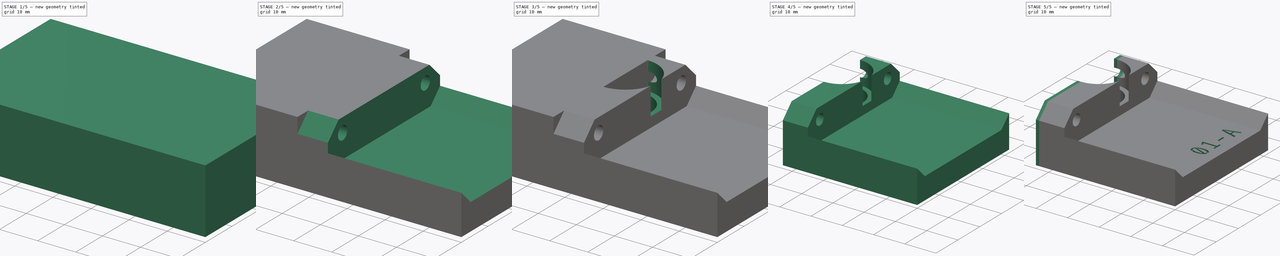
[diagram: build sequence overview — one tinted view per stage of 5, left to right]
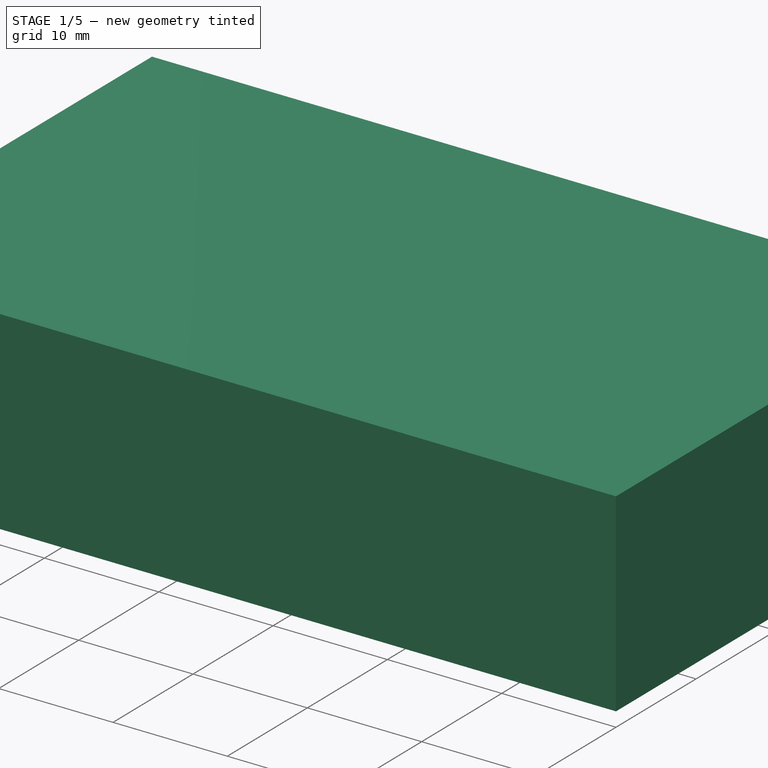
[diagram: stage 1 of 5 — iso view after this stage's code; geometry added in this stage tinted green]
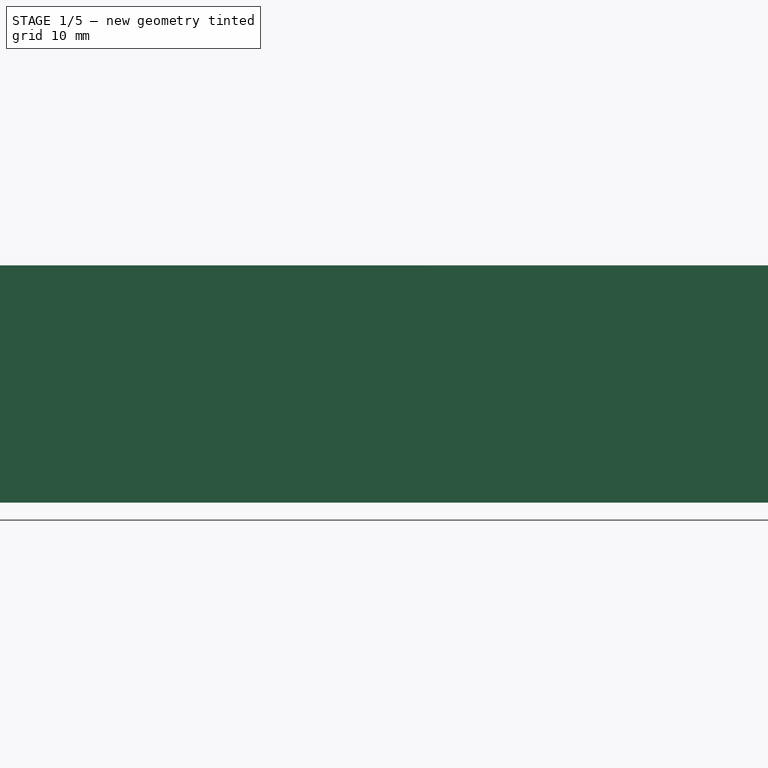
[diagram: stage 1 of 5 — front view after this stage's code; geometry added in this stage tinted green]
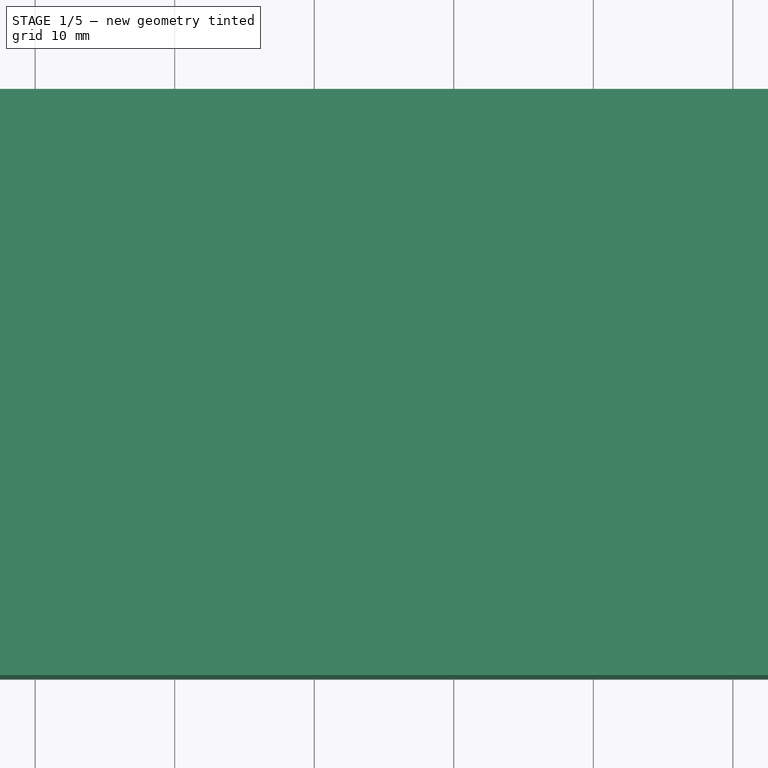
[diagram: stage 1 of 5 — top view after this stage's code; geometry added in this stage tinted green]
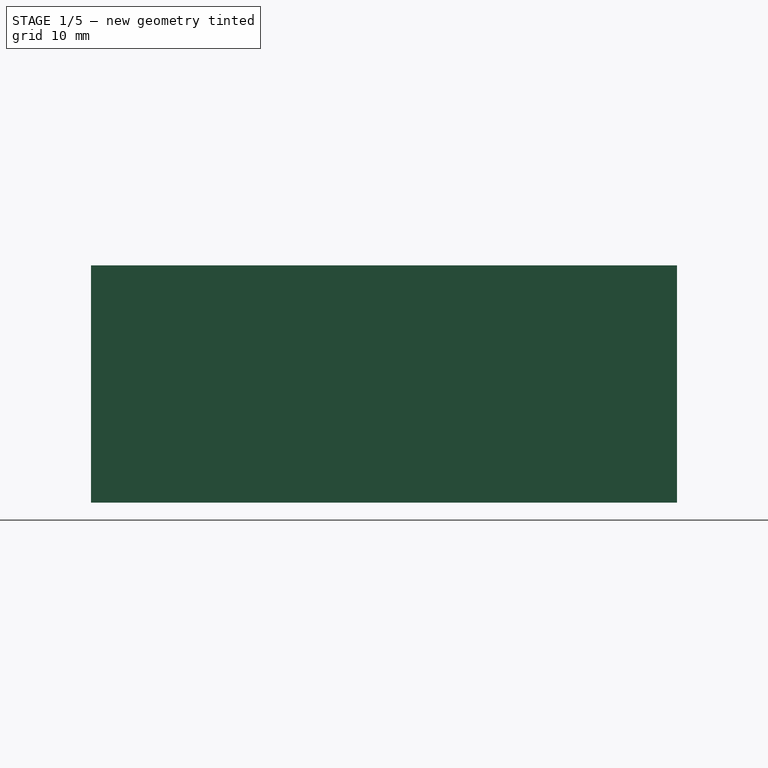
[diagram: stage 1 of 5 — right view after this stage's code; geometry added in this stage tinted green]
FCSTD DOCUMENT  (FreeCAD 0.17R13541 (Git))
Label: E3Dv6forGEEETech_B
License: Other
LicenseURL: https://www.gnu.org/licenses/gpl-2.0.html
objects: Part::Feature×11, Sketcher::SketchObject×8, PartDesign::Pocket×8, Part::Box×2, PartDesign::FeatureBase×2, PartDesign::Body×2, Part::Cut×2, PartDesign::Pad×2, Part::Fillet×1, Part::MultiFuse×1, Part::Extrusion×1
note: 50 computed .brp shape members not serialized (recipe doc carries the construction recipe); baked Part::Feature solids carry a one-line shape summary decoded from their .brp

FEATURE [Part::Box] Box  label="Cube"
  AttacherType = Attacher::AttachEngine3D
  Height = 17
  Length = 70
  Width = 42
FEATURE [PartDesign::FeatureBase] BaseFeature
  BaseFeature = -> Box
FEATURE [Part::Feature] path4484
  shape: bbox 3.4 x 5.012 x 2e-07 mm, 0 faces, 0 solids (baked)
FEATURE [Part::Feature] path4484001
  shape: bbox 2.472 x 2.845 x 2e-07 mm, 0 faces, 0 solids (baked)
FEATURE [Part::Feature] path4486
  shape: bbox 3.434 x 5.039 x 2e-07 mm, 0 faces, 0 solids (baked)
FEATURE [Part::Feature] path4488
  shape: bbox 5.249 x 3.59 x 2e-07 mm, 0 faces, 0 solids (baked)
FEATURE [Part::Feature] path4490
  shape: bbox 3.15 x 3.658 x 2e-07 mm, 0 faces, 0 solids (baked)
FEATURE [Part::Feature] path4490001
  shape: bbox 2.079 x 1.517 x 2e-07 mm, 0 faces, 0 solids (baked)
FEATURE [Part::Feature] path4492
  shape: bbox 3.407 x 5.1 x 2e-07 mm, 0 faces, 0 solids (baked)
FEATURE [Part::Feature] path4492001
  shape: bbox 2.479 x 2.845 x 2e-07 mm, 0 faces, 0 solids (baked)
FEATURE [Part::Feature] path4494
  shape: bbox 0.4606 x 3.529 x 2e-07 mm, 0 faces, 0 solids (baked)
FEATURE [Part::Feature] path4494001
  shape: bbox 0.4606 x 0.6773 x 2e-07 mm, 0 faces, 0 solids (baked)
FEATURE [Part::Feature] path4496
  shape: bbox 3.238 x 3.658 x 2e-07 mm, 0 faces, 0 solids (baked)
FEATURE [Part::MultiFuse] Fusion  label="MagicLabel"
  Placement = pos=(-1,53,12) rot=(0.57735,-0.57735,-0.57735;2.0944rad)
  Shapes = -> [path4484,path4484001,path4496,path4494001,path4494,path4492001,path4492,path4490001,path4490,path4488,path4486]
FEATURE [Part::Extrusion] Extrude
  Base = -> Fusion
  Dir = (1,0,0)
  DirMode = 2
  FaceMakerClass = Part::FaceMakerBullseye
  LengthFwd = 1
  LengthRev = 0
  Placement = pos=(1,-1,0) rot=(0,0,1;0rad)
  Solid = true
  Symmetric = false
FEATURE [Part::Box] Box001  label="HalfingCube"
  AttacherType = Attacher::AttachEngine3D
  Height = 17
  Length = 27
  Width = 42
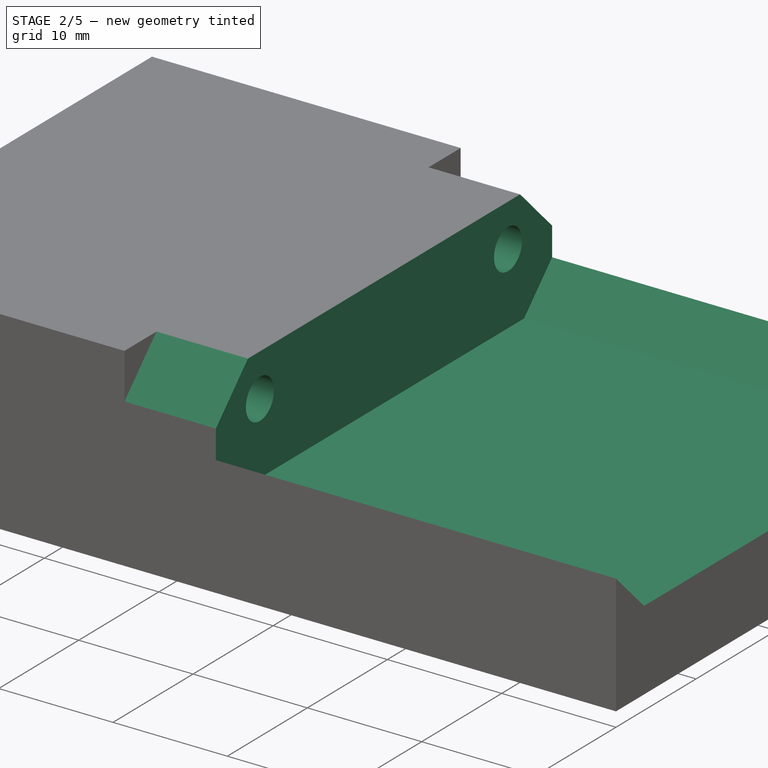
[diagram: stage 2 of 5 — iso view after this stage's code; geometry added in this stage tinted green]
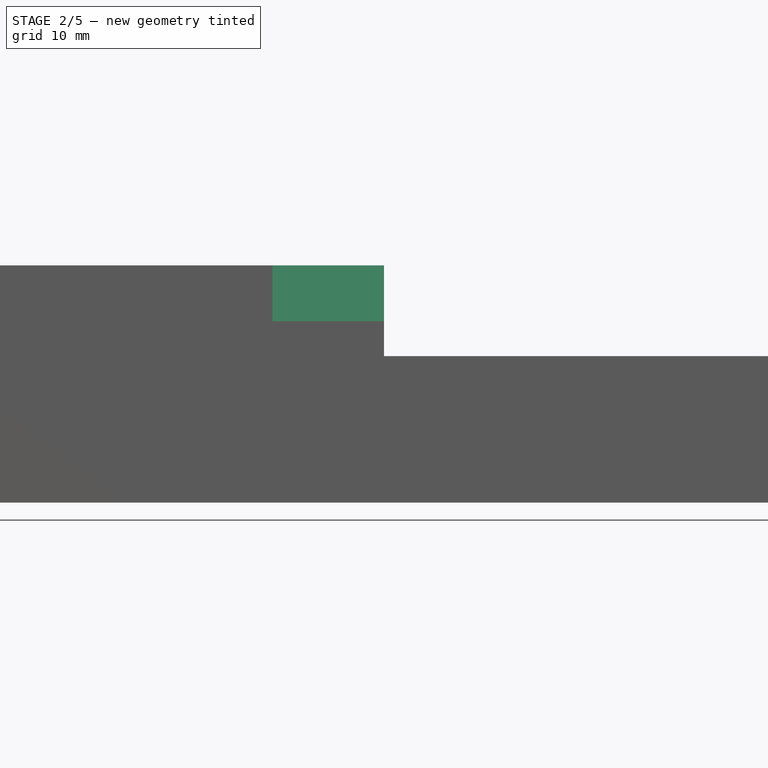
[diagram: stage 2 of 5 — front view after this stage's code; geometry added in this stage tinted green]
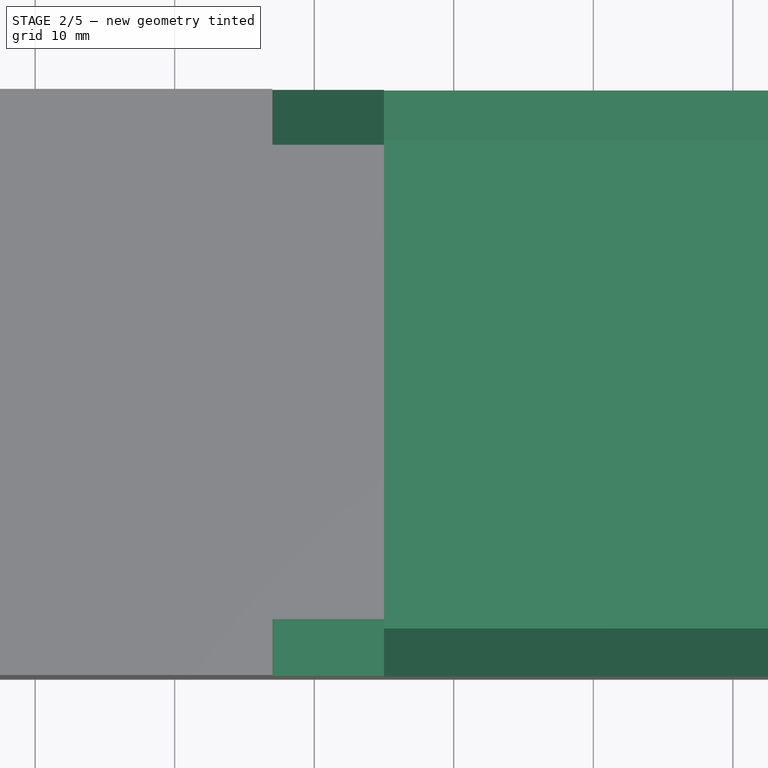
[diagram: stage 2 of 5 — top view after this stage's code; geometry added in this stage tinted green]
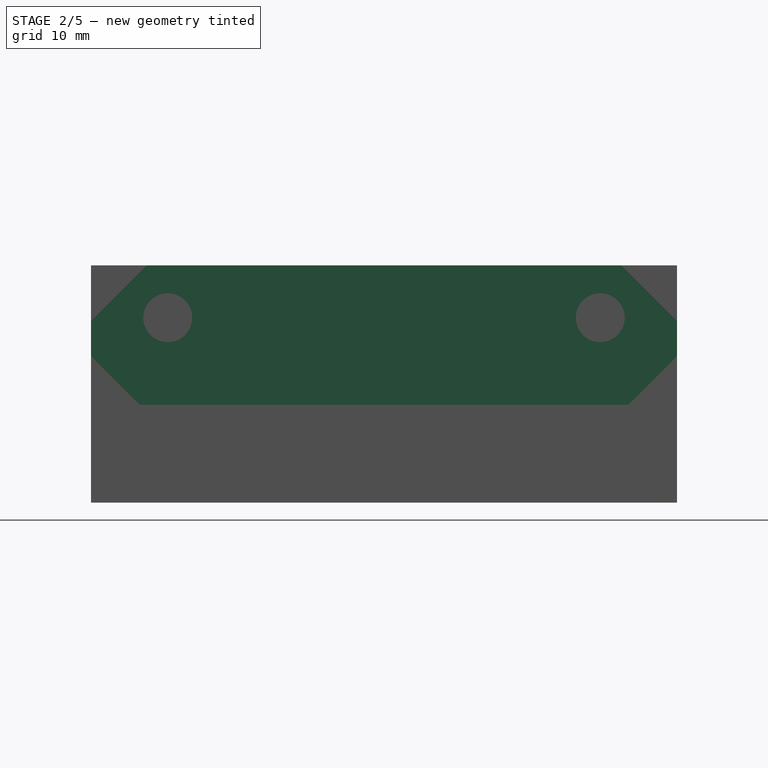
[diagram: stage 2 of 5 — right view after this stage's code; geometry added in this stage tinted green]
FEATURE [Sketcher::SketchObject] Sketch  label="Main Screws"
  ExternalGeometry = -> [BaseFeature]
  MapMode = 5
  Placement = pos=(70,0,0) rot=(0.57735,0.57735,0.57735;2.0944rad)
  Support = -> [BaseFeature]
  sketch-geometry (5):
    g0: LineSegment [constr] StartX=5.5 StartY=17 StartZ=0 EndX=5.5 EndY=0 EndZ=0
    g1: LineSegment [constr] StartX=36.5 StartY=17 StartZ=0 EndX=36.5 EndY=0 EndZ=0
    g2: LineSegment [constr] StartX=0 StartY=13.25 StartZ=0 EndX=42 EndY=13.25 EndZ=0
    g3: Circle CenterX=5.5 CenterY=13.25 CenterZ=0 NormalX=0 NormalY=0 NormalZ=1 AngleXU=0 Radius=1.75
    g4: Circle CenterX=36.5 CenterY=13.25 CenterZ=0 NormalX=0 NormalY=0 NormalZ=1 AngleXU=0 Radius=1.75
  constraints (18):
    c: Horizontal(g2)
    c: PointOnObject(g0,g-1)
    c: PointOnObject(g1,g-1)
    c: PointOnObject(g0,g-3)
    c: PointOnObject(g1,g-3)
    c: Vertical(g0)
    c: Vertical(g1)
    c: PointOnObject(g2,g-4)
    c: PointOnObject(g2,g-6)
    c: DistanceY(g-1,g2) = 13.25
    c: DistanceX(g-1,g0) = 5.5
    c: DistanceX(g1,g-6) = 5.5
    c: PointOnObject(g3,g0)
    c: PointOnObject(g3,g2)
    c: PointOnObject(g4,g2)
    c: PointOnObject(g4,g1)
    c: Radius(g3) = 1.75
    c: Radius(g4) = 1.75
FEATURE [Sketcher::SketchObject] Sketch001  label="Motor Top Support"
  ExternalGeometry = -> [BaseFeature]
  MapMode = 5
  Placement = pos=(70,0,0) rot=(0.57735,0.57735,0.57735;2.0944rad)
  Support = -> [BaseFeature]
  sketch-geometry (6):
    g0: LineSegment StartX=4 StartY=17 StartZ=0 EndX=0 EndY=17 EndZ=0
    g1: LineSegment StartX=0 StartY=17 StartZ=0 EndX=0 EndY=13 EndZ=0
    g2: LineSegment StartX=0 StartY=13 StartZ=0 EndX=4 EndY=17 EndZ=0
    g3: LineSegment StartX=38 StartY=17 StartZ=0 EndX=42 EndY=17 EndZ=0
    g4: LineSegment StartX=42 StartY=17 StartZ=0 EndX=42 EndY=13 EndZ=0
    g5: LineSegment StartX=42 StartY=13 StartZ=0 EndX=38 EndY=17 EndZ=0
  constraints (16):
    c: Coincident(g0,g1)
    c: Coincident(g1,g2)
    c: Coincident(g2,g0)
    c: Coincident(g3,g4)
    c: Coincident(g4,g5)
    c: Coincident(g5,g3)
    c: Coincident(g0,g-6)
    c: Coincident(g3,g-6)
    c: PointOnObject(g1,g-3)
    c: PointOnObject(g0,g-6)
    c: PointOnObject(g3,g-6)
    c: PointOnObject(g4,g-5)
    c: DistanceY(g1,g1) = 4
    c: DistanceX(g0,g0) = 4
    c: Equal(g1,g4)
    c: Equal(g0,g3)
FEATURE [PartDesign::Pocket] Pocket  label="MainScrewsPocket"
  BaseFeature = -> BaseFeature
  Length = 5
  Length2 = 100
  Profile = -> Sketch
  Type = 1
FEATURE [PartDesign::Pocket] Pocket001  label="MotorSupportPocket"
  BaseFeature = -> Pocket
  Length = 50
  Length2 = 100
  Profile = -> Sketch001
  Type = 0
FEATURE [Sketcher::SketchObject] Sketch002  label="MotorHole"
  ExternalGeometry = -> [Pocket001]
  MapMode = 5
  Placement = pos=(70,0,0) rot=(0.57735,0.57735,0.57735;2.0944rad)
  Support = -> [Pocket001]
  sketch-geometry (10):
    g0: LineSegment StartX=4 StartY=17 StartZ=0 EndX=0 EndY=13 EndZ=0
    g1: LineSegment StartX=0 StartY=13 StartZ=0 EndX=0 EndY=10.5 EndZ=0
    g2: LineSegment StartX=0 StartY=10.5 StartZ=0 EndX=3.5 EndY=7 EndZ=0
    g3: LineSegment StartX=3.5 StartY=7 StartZ=0 EndX=38.5 EndY=7 EndZ=0
    g4: LineSegment StartX=38.5 StartY=7 StartZ=0 EndX=42 EndY=10.5 EndZ=0
    g5: LineSegment StartX=42 StartY=10.5 StartZ=0 EndX=42 EndY=13 EndZ=0
    g6: LineSegment StartX=42 StartY=13 StartZ=0 EndX=38 EndY=17 EndZ=0
    g7: LineSegment StartX=38 StartY=17 StartZ=0 EndX=4 EndY=17 EndZ=0
    g8: LineSegment [constr] StartX=0 StartY=7 StartZ=0 EndX=3.5 EndY=7 EndZ=0
    g9: LineSegment [constr] StartX=38.5 StartY=7 StartZ=0 EndX=42 EndY=7 EndZ=0
  constraints (25):
    c: Coincident(g0,g1)
    c: Coincident(g1,g2)
    c: Coincident(g2,g3)
    c: Horizontal(g3)
    c: Coincident(g3,g4)
    c: Coincident(g4,g5)
    c: Coincident(g5,g6)
    c: Coincident(g6,g7)
    c: Horizontal(g7)
    c: Coincident(g0,g-5)
    c: Coincident(g6,g-7)
    c: Coincident(g5,g-7)
    c: PointOnObject(g4,g-6)
    c: PointOnObject(g1,g-5)
    c: PointOnObject(g8,g-5)
    c: Horizontal(g8)
    c: DistanceX(g8,g8) = 3.5
    c: DistanceY(g8,g1) = 3.5
    c: Coincident(g2,g8)
    c: Horizontal(g9)
    c: PointOnObject(g9,g-6)
    c: Coincident(g3,g9)
    c: DistanceX(g9,g9) = 3.5
    c: DistanceY(g9,g4) = 3.5
    c: DistanceY(g2,g0) = 10
FEATURE [PartDesign::Pocket] Pocket002  label="MotorPocket"
  BaseFeature = -> Pocket001
  Length = 35
  Length2 = 100
  Profile = -> Sketch002
  Type = 0
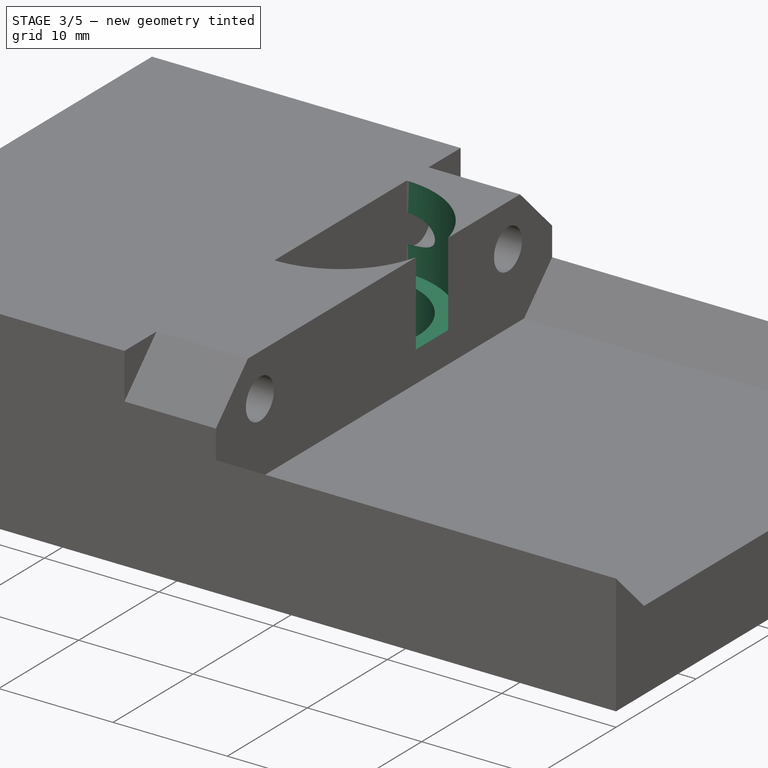
[diagram: stage 3 of 5 — iso view after this stage's code; geometry added in this stage tinted green]
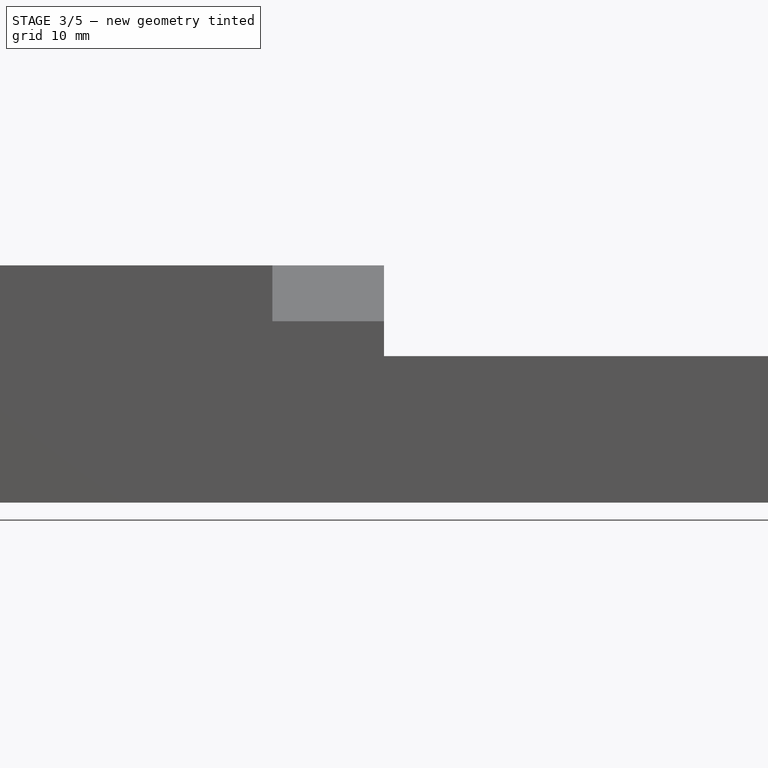
[diagram: stage 3 of 5 — front view after this stage's code; geometry added in this stage tinted green]
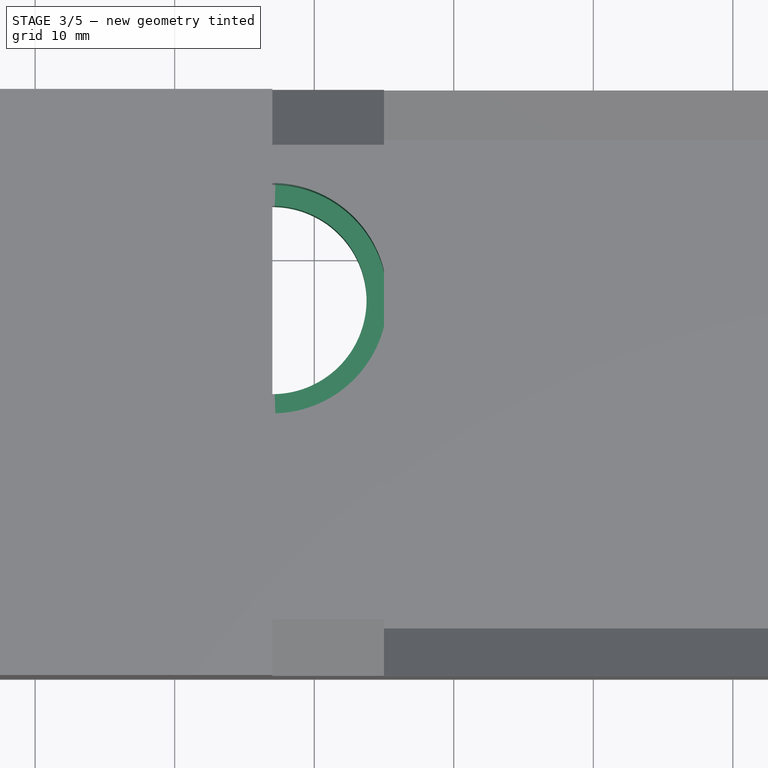
[diagram: stage 3 of 5 — top view after this stage's code; geometry added in this stage tinted green]
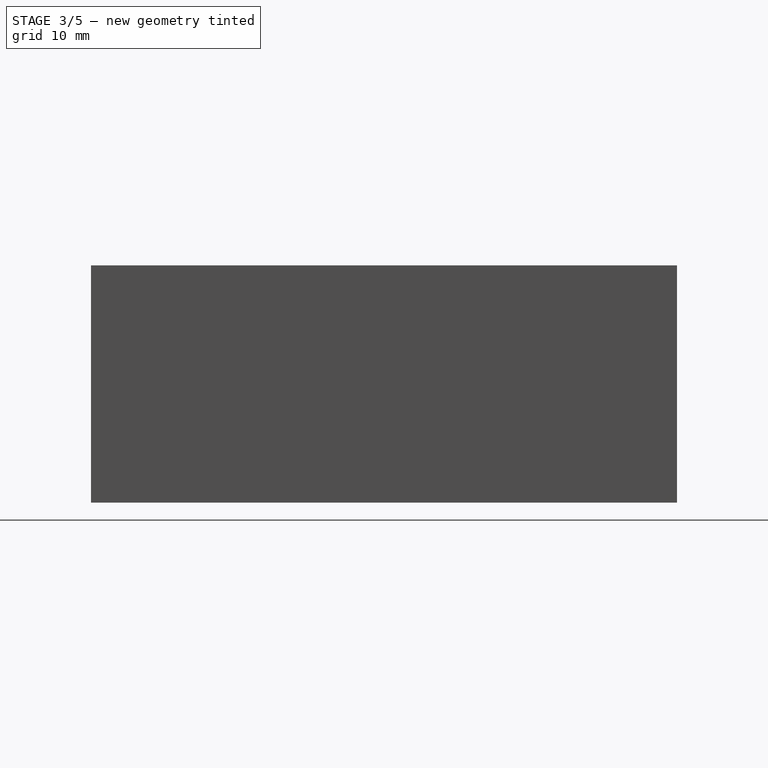
[diagram: stage 3 of 5 — right view after this stage's code; geometry added in this stage tinted green]
FEATURE [Sketcher::SketchObject] Sketch003  label="CenterHole"
  ExternalGeometry = -> [Pocket002]
  MapMode = 5
  Placement = pos=(0,0,17) rot=(0,0,1;0rad)
  Support = -> [Pocket002]
  sketch-geometry (3):
    g0: LineSegment [constr] StartX=27 StartY=42 StartZ=0 EndX=27 EndY=0 EndZ=0
    g1: LineSegment [constr] StartX=0 StartY=27 StartZ=0 EndX=35 EndY=27 EndZ=0
    g2: Circle CenterX=27 CenterY=27 CenterZ=0 NormalX=0 NormalY=0 NormalZ=1 AngleXU=0 Radius=6.75
  constraints (11):
    c: PointOnObject(g0,g-3)
    c: PointOnObject(g0,g-6)
    c: Vertical(g0)
    c: DistanceX(g-4,g0) = 27
    c: PointOnObject(g1,g-4)
    c: PointOnObject(g1,g-5)
    c: Horizontal(g1)
    c: DistanceY(g1,g-4) = 15
    c: PointOnObject(g2,g0)
    c: PointOnObject(g2,g1)
    c: Radius(g2) = 6.75
FEATURE [PartDesign::Pocket] Pocket003  label="CenterHolePocket"
  BaseFeature = -> Pocket002
  Length = 5
  Length2 = 100
  Profile = -> Sketch003
  Type = 1
FEATURE [Sketcher::SketchObject] Sketch004  label="TopHole"
  ExternalGeometry = -> [Pocket003]
  MapMode = 5
  Placement = pos=(0,0,17) rot=(0,0,1;0rad)
  Support = -> [Pocket003]
  sketch-geometry (3):
    g0: LineSegment [constr] StartX=27 StartY=42 StartZ=0 EndX=27 EndY=0 EndZ=0
    g1: LineSegment [constr] StartX=0 StartY=27 StartZ=0 EndX=35 EndY=27 EndZ=0
    g2: Circle CenterX=27 CenterY=27 CenterZ=0 NormalX=0 NormalY=0 NormalZ=1 AngleXU=0 Radius=8.25
  constraints (11):
    c: PointOnObject(g0,g-6)
    c: PointOnObject(g0,g-5)
    c: Vertical(g0)
    c: PointOnObject(g1,g-3)
    c: PointOnObject(g1,g-4)
    c: Horizontal(g1)
    c: DistanceX(g-6,g0) = 27
    c: DistanceY(g1,g-6) = 15
    c: PointOnObject(g2,g1)
    c: PointOnObject(g2,g0)
    c: Radius(g2) = 8.25
FEATURE [PartDesign::Pocket] Pocket004  label="TopHolePocket"
  BaseFeature = -> Pocket003
  Length = 7.3
  Length2 = 100
  Profile = -> Sketch004
  Type = 0
FEATURE [Sketcher::SketchObject] Sketch005  label="BottomHole"
  ExternalGeometry = -> [Pocket004]
  MapMode = 5
  Placement = pos=(0,0,0) rot=(1,0,0;3.14159rad)
  Support = -> [Pocket004]
  sketch-geometry (3):
    g0: LineSegment [constr] StartX=27 StartY=-42 StartZ=0 EndX=27 EndY=0 EndZ=0
    g1: LineSegment [constr] StartX=55 StartY=-27 StartZ=0 EndX=0 EndY=-27 EndZ=0
    g2: Circle CenterX=27 CenterY=-27 CenterZ=0 NormalX=0 NormalY=0 NormalZ=1 AngleXU=0 Radius=8.25
  constraints (11):
    c: PointOnObject(g1,g-4)
    c: Horizontal(g1)
    c: Vertical(g0)
    c: DistanceX(g-4,g0) = 27
    c: DistanceY(g-4,g1) = 15
    c: PointOnObject(g2,g0)
    c: PointOnObject(g2,g1)
    c: Radius(g2) = 8.25
    c: PointOnObject(g0,g-3)
    c: PointOnObject(g1,g-5)
    c: PointOnObject(g0,g-6)
FEATURE [PartDesign::Pocket] Pocket005  label="BottomHolePocket"
  BaseFeature = -> Pocket004
  Length = 4.2
  Length2 = 100
  Profile = -> Sketch005
  Type = 0
FEATURE [PartDesign::Body] Body
  BaseFeature = -> Box
  Group = -> [BaseFeature,Sketch,Sketch001,Pocket,Pocket001,Sketch002,Pocket002,Sketch003,Pocket003,Sketch004,Pocket004,Sketch005,Pocket005]
  Origin = -> Origin
  Tip = -> Pocket005
FEATURE [Part::Fillet] Fillet
  Base = -> Pocket005
  Edges = 5 edges r=0.5: [Edge1,Edge2,Edge4,Edge12,Edge14]
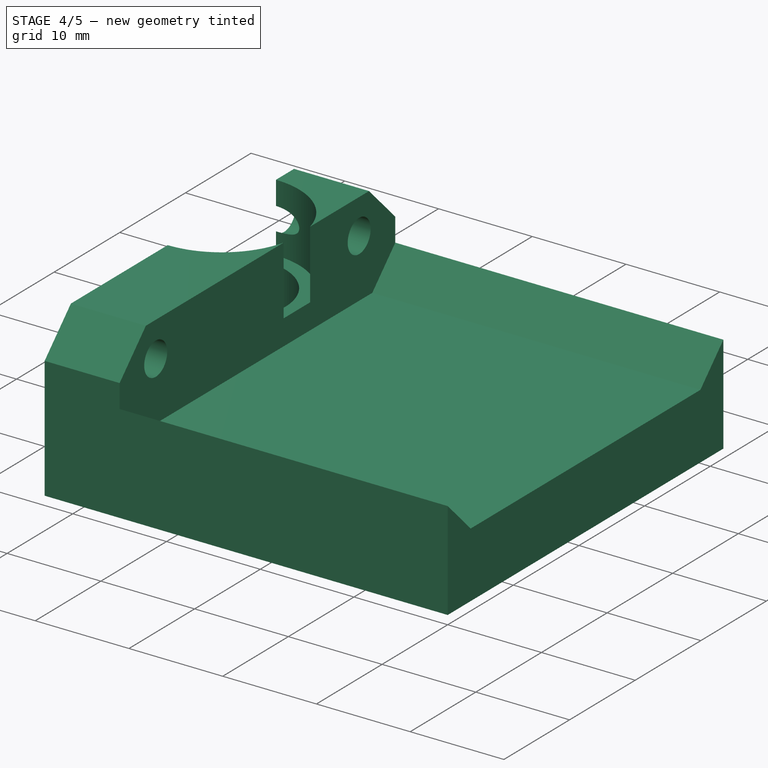
[diagram: stage 4 of 5 — iso view after this stage's code; geometry added in this stage tinted green]
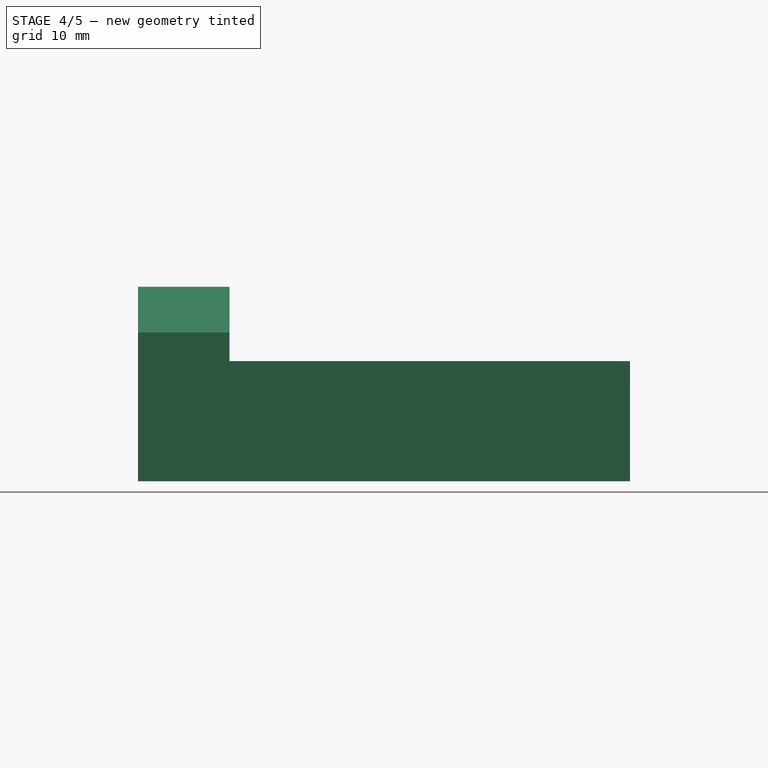
[diagram: stage 4 of 5 — front view after this stage's code; geometry added in this stage tinted green]
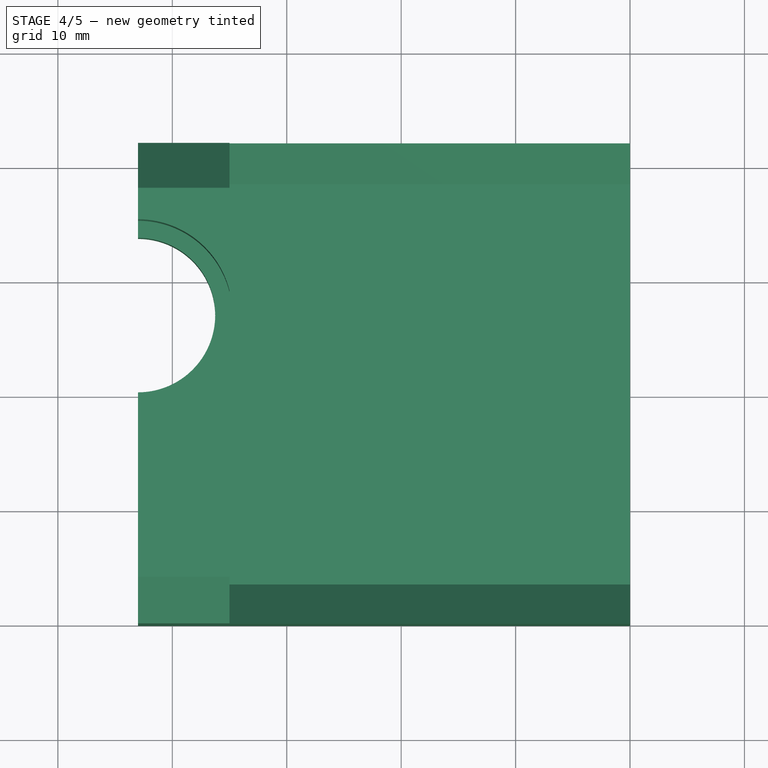
[diagram: stage 4 of 5 — top view after this stage's code; geometry added in this stage tinted green]
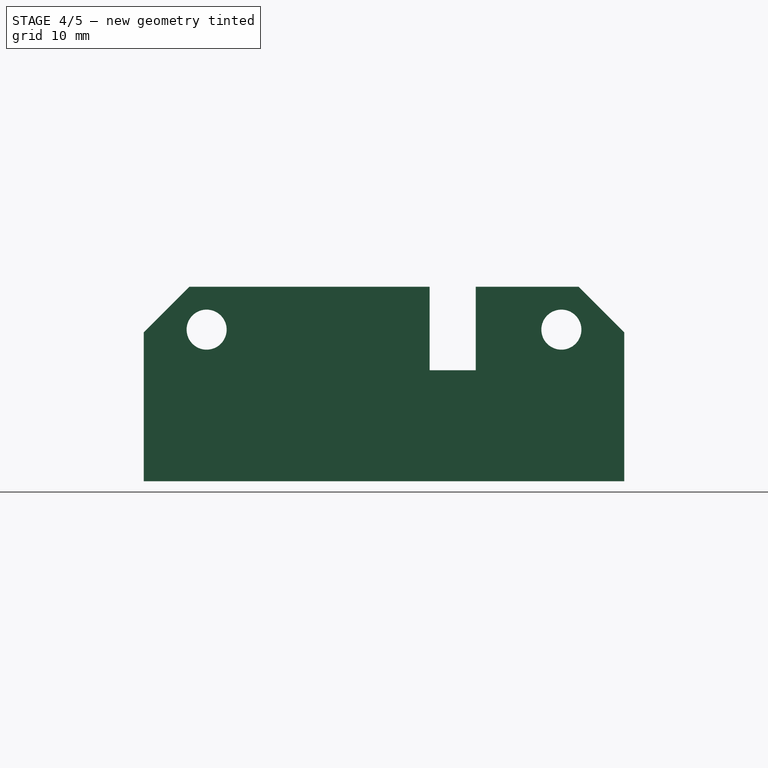
[diagram: stage 4 of 5 — right view after this stage's code; geometry added in this stage tinted green]
FEATURE [Part::Cut] Cut
  Base = -> Fillet
  Tool = -> Extrude
FEATURE [Part::Cut] Cut001  label="PartB"
  Base = -> Cut
  Tool = -> Box001
FEATURE [PartDesign::FeatureBase] BaseFeature001  label="PartBBaseFeature"
  BaseFeature = -> Cut001
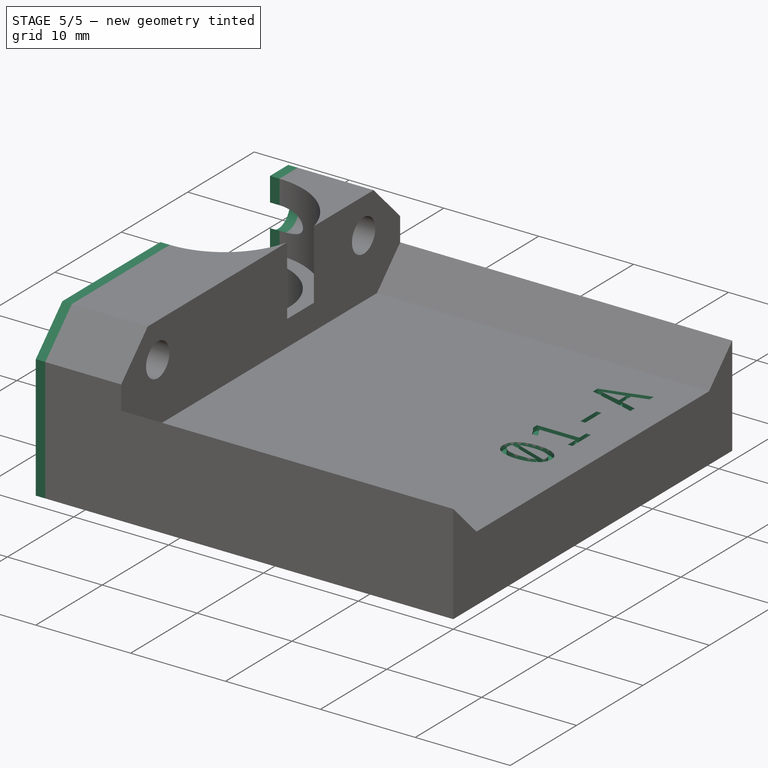
[diagram: stage 5 of 5 — iso view after this stage's code; geometry added in this stage tinted green]
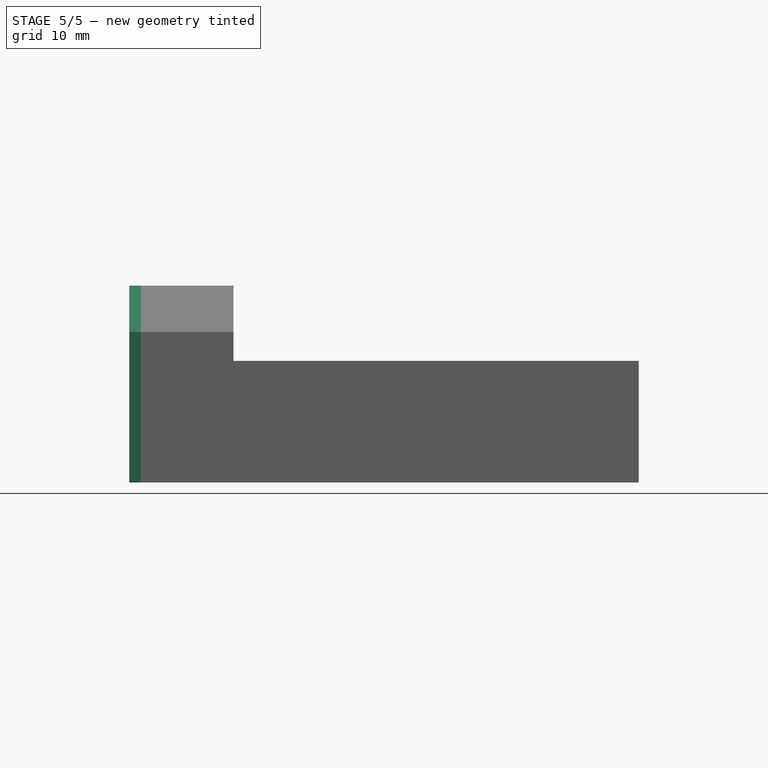
[diagram: stage 5 of 5 — front view after this stage's code; geometry added in this stage tinted green]
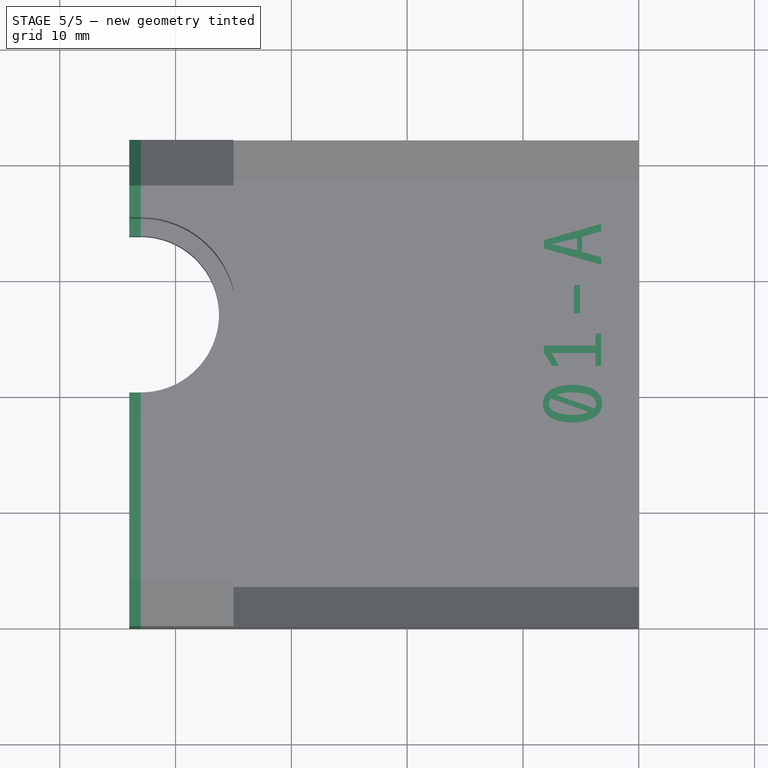
[diagram: stage 5 of 5 — top view after this stage's code; geometry added in this stage tinted green]
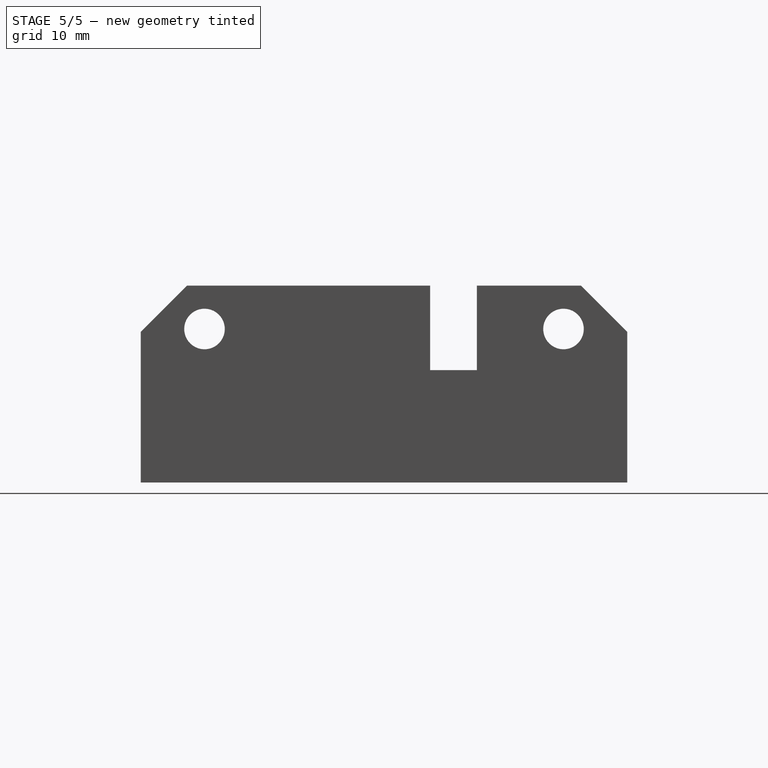
[diagram: stage 5 of 5 — right view after this stage's code; geometry added in this stage tinted green]
FEATURE [Sketcher::SketchObject] Sketch006  label="TextSketch"
  AttachmentOffset = pos=(29,-9,0) rot=(0,0,1;1.5708rad)
  MapMode = 5
  Placement = pos=(29,-9,7) rot=(0,0,1;1.5708rad)
  Support = -> [BaseFeature001]
  sketch-geometry (65):
    g0: BSplineCurve PolesCount=3 KnotsCount=2 Degree=2 IsPeriodic=0
    g1: BSplineCurve PolesCount=3 KnotsCount=2 Degree=2 IsPeriodic=0
    g2: BSplineCurve PolesCount=3 KnotsCount=2 Degree=2 IsPeriodic=0
    g3: BSplineCurve PolesCount=3 KnotsCount=2 Degree=2 IsPeriodic=0
    g4: BSplineCurve PolesCount=2 KnotsCount=2 Degree=1 IsPeriodic=0
    g5: BSplineCurve PolesCount=3 KnotsCount=2 Degree=2 IsPeriodic=0
    g6: BSplineCurve PolesCount=3 KnotsCount=2 Degree=2 IsPeriodic=0
    g7: BSplineCurve PolesCount=3 KnotsCount=2 Degree=2 IsPeriodic=0
    g8: BSplineCurve PolesCount=3 KnotsCount=2 Degree=2 IsPeriodic=0
    g9: BSplineCurve PolesCount=3 KnotsCount=2 Degree=2 IsPeriodic=0
    g10: BSplineCurve PolesCount=3 KnotsCount=2 Degree=2 IsPeriodic=0
    g11: BSplineCurve PolesCount=3 KnotsCount=2 Degree=2 IsPeriodic=0
    g12: BSplineCurve PolesCount=3 KnotsCount=2 Degree=2 IsPeriodic=0
    g13: BSplineCurve PolesCount=3 KnotsCount=2 Degree=2 IsPeriodic=0
    g14: BSplineCurve PolesCount=3 KnotsCount=2 Degree=2 IsPeriodic=0
    g15: BSplineCurve PolesCount=3 KnotsCount=2 Degree=2 IsPeriodic=0
    g16: BSplineCurve PolesCount=3 KnotsCount=2 Degree=2 IsPeriodic=0
    g17: BSplineCurve PolesCount=3 KnotsCount=2 Degree=2 IsPeriodic=0
    g18: BSplineCurve PolesCount=3 KnotsCount=2 Degree=2 IsPeriodic=0
    g19: BSplineCurve PolesCount=3 KnotsCount=2 Degree=2 IsPeriodic=0
    g20: BSplineCurve PolesCount=3 KnotsCount=2 Degree=2 IsPeriodic=0
    g21: BSplineCurve PolesCount=3 KnotsCount=2 Degree=2 IsPeriodic=0
    g22: BSplineCurve PolesCount=3 KnotsCount=2 Degree=2 IsPeriodic=0
    g23: BSplineCurve PolesCount=3 KnotsCount=2 Degree=2 IsPeriodic=0
    g24: BSplineCurve PolesCount=3 KnotsCount=2 Degree=2 IsPeriodic=0
    g25: BSplineCurve PolesCount=3 KnotsCount=2 Degree=2 IsPeriodic=0
    g26: BSplineCurve PolesCount=2 KnotsCount=2 Degree=1 IsPeriodic=0
    g27: BSplineCurve PolesCount=3 KnotsCount=2 Degree=2 IsPeriodic=0
    g28: BSplineCurve PolesCount=3 KnotsCount=2 Degree=2 IsPeriodic=0
    g29: BSplineCurve PolesCount=3 KnotsCount=2 Degree=2 IsPeriodic=0
    g30: BSplineCurve PolesCount=3 KnotsCount=2 Degree=2 IsPeriodic=0
    g31: BSplineCurve PolesCount=3 KnotsCount=2 Degree=2 IsPeriodic=0
    g32: BSplineCurve PolesCount=2 KnotsCount=2 Degree=1 IsPeriodic=0
    g33: BSplineCurve PolesCount=2 KnotsCount=2 Degree=1 IsPeriodic=0
    g34: BSplineCurve PolesCount=2 KnotsCount=2 Degree=1 IsPeriodic=0
    g35: BSplineCurve PolesCount=2 KnotsCount=2 Degree=1 IsPeriodic=0
    g36: BSplineCurve PolesCount=3 KnotsCount=2 Degree=2 IsPeriodic=0
    g37: BSplineCurve PolesCount=3 KnotsCount=2 Degree=2 IsPeriodic=0
    g38: BSplineCurve PolesCount=3 KnotsCount=2 Degree=2 IsPeriodic=0
    g39: BSplineCurve PolesCount=2 KnotsCount=2 Degree=1 IsPeriodic=0
    g40: BSplineCurve PolesCount=3 KnotsCount=2 Degree=2 IsPeriodic=0
    g41: BSplineCurve PolesCount=3 KnotsCount=2 Degree=2 IsPeriodic=0
    g42: BSplineCurve PolesCount=3 KnotsCount=2 Degree=2 IsPeriodic=0
    g43: BSplineCurve PolesCount=3 KnotsCount=2 Degree=2 IsPeriodic=0
    g44: BSplineCurve PolesCount=3 KnotsCount=2 Degree=2 IsPeriodic=0
    g45: BSplineCurve PolesCount=3 KnotsCount=2 Degree=2 IsPeriodic=0
    g46: BSplineCurve PolesCount=2 KnotsCount=2 Degree=1 IsPeriodic=0
    g47: BSplineCurve PolesCount=2 KnotsCount=2 Degree=1 IsPeriodic=0
    g48: BSplineCurve PolesCount=2 KnotsCount=2 Degree=1 IsPeriodic=0
    g49: BSplineCurve PolesCount=2 KnotsCount=2 Degree=1 IsPeriodic=0
    g50: BSplineCurve PolesCount=2 KnotsCount=2 Degree=1 IsPeriodic=0
    g51: BSplineCurve PolesCount=2 KnotsCount=2 Degree=1 IsPeriodic=0
    g52: BSplineCurve PolesCount=2 KnotsCount=2 Degree=1 IsPeriodic=0
    g53: BSplineCurve PolesCount=2 KnotsCount=2 Degree=1 IsPeriodic=0
    g54: BSplineCurve PolesCount=2 KnotsCount=2 Degree=1 IsPeriodic=0
    g55: BSplineCurve PolesCount=2 KnotsCount=2 Degree=1 IsPeriodic=0
    g56: BSplineCurve PolesCount=2 KnotsCount=2 Degree=1 IsPeriodic=0
    g57: BSplineCurve PolesCount=2 KnotsCount=2 Degree=1 IsPeriodic=0
    g58: BSplineCurve PolesCount=2 KnotsCount=2 Degree=1 IsPeriodic=0
    g59: BSplineCurve PolesCount=2 KnotsCount=2 Degree=1 IsPeriodic=0
    g60: BSplineCurve PolesCount=2 KnotsCount=2 Degree=1 IsPeriodic=0
    g61: BSplineCurve PolesCount=2 KnotsCount=2 Degree=1 IsPeriodic=0
    g62: BSplineCurve PolesCount=2 KnotsCount=2 Degree=1 IsPeriodic=0
    g63: BSplineCurve PolesCount=2 KnotsCount=2 Degree=1 IsPeriodic=0
    g64: BSplineCurve PolesCount=2 KnotsCount=2 Degree=1 IsPeriodic=0
  constraints (65):
    c: Coincident(g0,g1)
    c: Coincident(g1,g2)
    c: Coincident(g2,g3)
    c: Coincident(g3,g4)
    c: Coincident(g4,g5)
    c: Coincident(g5,g0)
    c: Coincident(g6,g7)
    c: Coincident(g7,g8)
    c: Coincident(g8,g9)
    c: Coincident(g9,g10)
    c: Coincident(g10,g11)
    c: Coincident(g11,g12)
    c: Coincident(g12,g13)
    c: Coincident(g13,g14)
    c: Coincident(g14,g15)
    c: Coincident(g15,g16)
    c: Coincident(g16,g17)
    c: Coincident(g17,g18)
    c: Coincident(g18,g19)
    c: Coincident(g19,g20)
    c: Coincident(g20,g21)
    c: Coincident(g21,g22)
    c: Coincident(g22,g23)
    c: Coincident(g23,g24)
    c: Coincident(g24,g25)
    c: Coincident(g25,g6)
    c: Coincident(g26,g27)
    c: Coincident(g27,g28)
    c: Coincident(g28,g29)
    c: Coincident(g29,g30)
    c: Coincident(g30,g31)
    c: Coincident(g31,g26)
    c: Coincident(g32,g33)
    c: Coincident(g33,g34)
    c: Coincident(g34,g35)
    c: Coincident(g35,g36)
    c: Coincident(g36,g37)
    c: Coincident(g37,g38)
    c: Coincident(g38,g39)
    c: Coincident(g39,g40)
    c: Coincident(g40,g41)
    c: Coincident(g41,g42)
    c: Coincident(g42,g43)
    c: Coincident(g43,g44)
    c: Coincident(g44,g45)
    c: Coincident(g45,g46)
    c: Coincident(g46,g47)
    c: Coincident(g47,g48)
    c: Coincident(g48,g49)
    c: Coincident(g49,g32)
    c: Coincident(g50,g51)
    c: Coincident(g51,g52)
    c: Coincident(g52,g53)
    c: Coincident(g53,g50)
    c: Coincident(g54,g55)
    c: Coincident(g55,g56)
    c: Coincident(g56,g57)
    c: Coincident(g57,g58)
    c: Coincident(g58,g59)
    c: Coincident(g59,g60)
    c: Coincident(g60,g61)
    c: Coincident(g61,g54)
    c: Coincident(g62,g63)
    c: Coincident(g63,g64)
    c: Coincident(g64,g62)
FEATURE [PartDesign::Pocket] Pocket006  label="ModelNumberPocket"
  BaseFeature = -> BaseFeature001
  Length = 0.5
  Length2 = 100
  Profile = -> Sketch006
  Type = 0
FEATURE [Sketcher::SketchObject] Sketch007  label="MountingHoles"
  ExternalGeometry = -> [Pocket006]
  MapMode = 5
  Placement = pos=(0,0,0) rot=(1,0,0;3.14159rad)
  Support = -> [Pocket006]
  sketch-geometry (3):
    g0: LineSegment [constr] StartX=27 StartY=-18.75 StartZ=0 EndX=27 EndY=-35.25 EndZ=0
    g1: LineSegment [constr] StartX=27 StartY=-21 StartZ=0 EndX=70 EndY=-21 EndZ=0
    g2: Circle CenterX=60 CenterY=-21 CenterZ=0 NormalX=0 NormalY=0 NormalZ=1 AngleXU=0 Radius=1.75
  constraints (9):
    c: Coincident(g0,g-4)
    c: Coincident(g0,g-5)
    c: PointOnObject(g1,g-4)
    c: PointOnObject(g1,g-3)
    c: Horizontal(g1)
    c: Symmetric(g-3,g-3,g1)
    c: Radius(g2) = 1.75
    c: PointOnObject(g2,g1)
    c: DistanceX(g2,g1) = 10
FEATURE [PartDesign::Pocket] Pocket007  label="MountingHolesPocket"
  BaseFeature = -> Pocket006
  Length = 5
  Length2 = 100
  Profile = -> Sketch007
  Type = 0
FEATURE [PartDesign::Pad] Pad
  BaseFeature = -> Pocket007
  Length = 1
  Length2 = 100
  Profile = -> Pocket007 [Face2]
  Type = 0
FEATURE [PartDesign::Pad] Pad001
  BaseFeature = -> Pad
  Length = 1
  Length2 = 100
  Profile = -> Pad [Face8]
  Type = 0
FEATURE [PartDesign::Body] Body001  label="PartBBody"
  BaseFeature = -> Cut001
  Group = -> [BaseFeature001,Sketch006,Pocket006,Sketch007,Pocket007,Pad,Pad001]
  Origin = -> Origin001
  Tip = -> Pad001
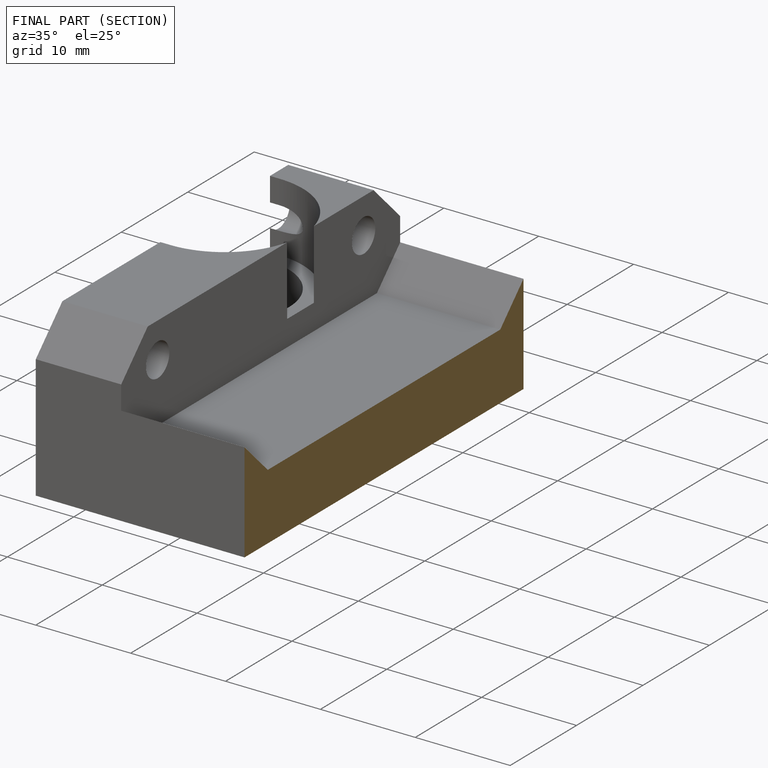
[diagram: finished part — half-section view (interior)]
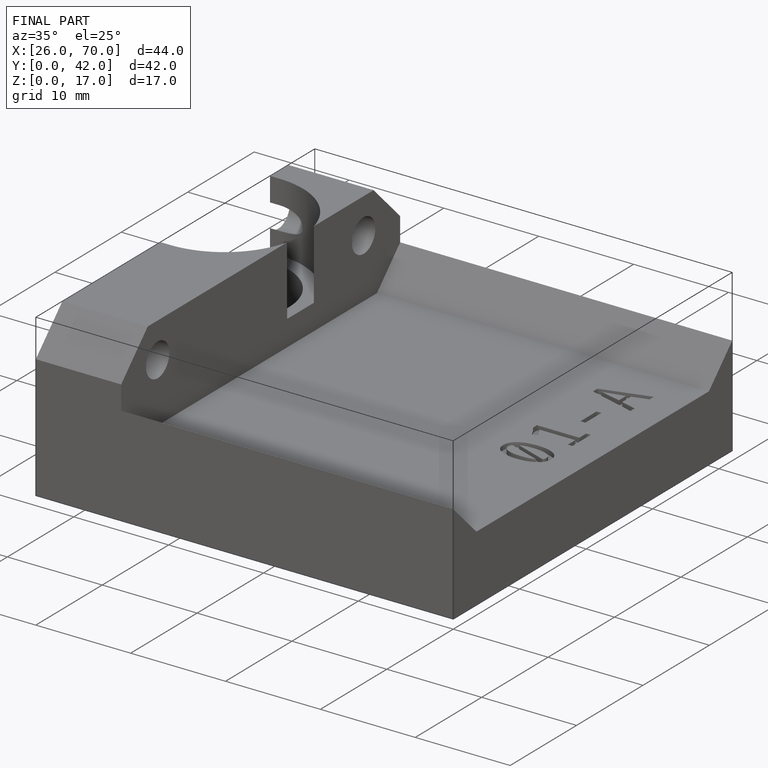
[diagram: finished part — iso view with bounding-box wireframe]
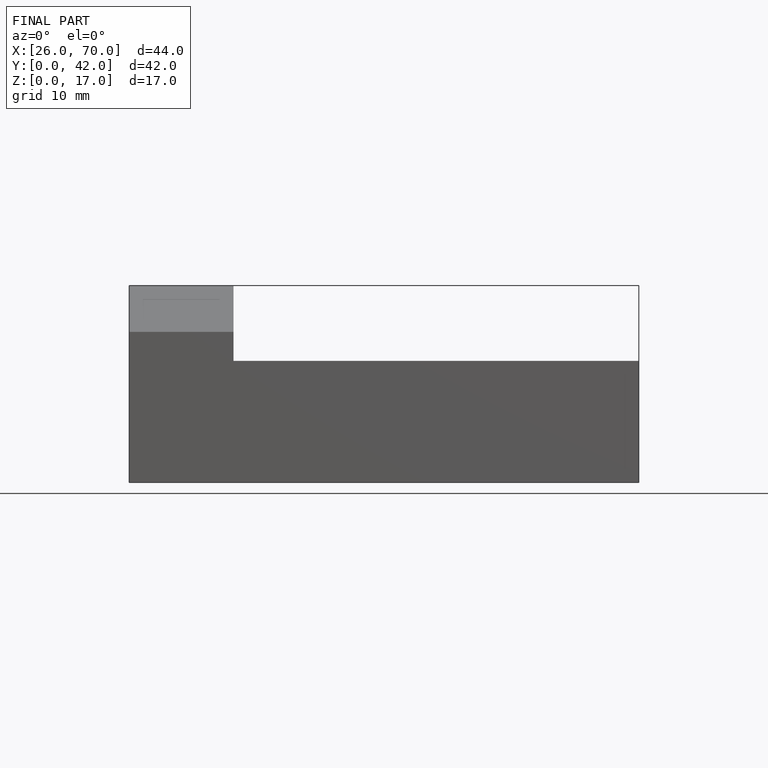
[diagram: finished part — front view with bounding-box wireframe]
